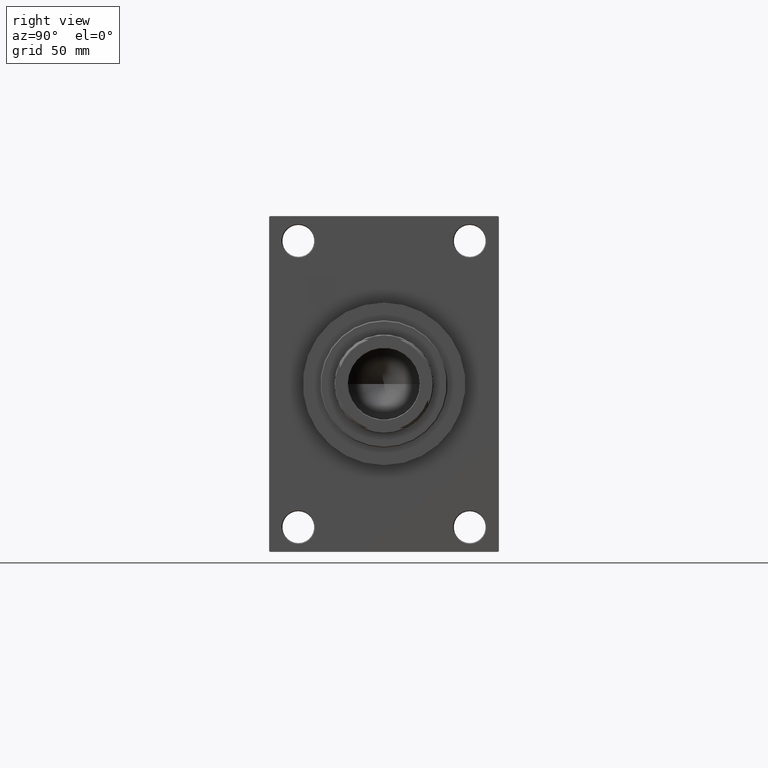
[diagram: clean part render]
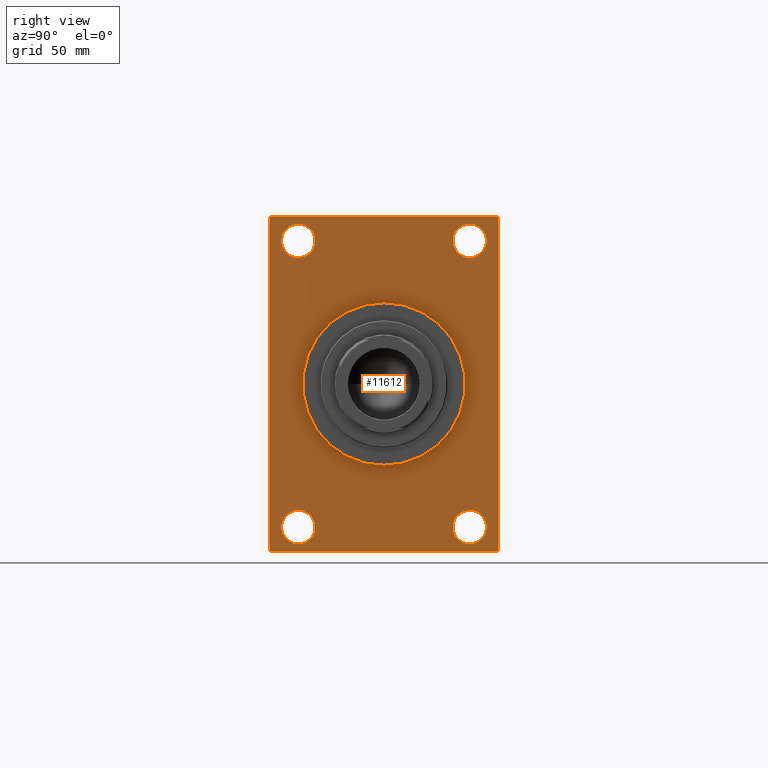
[diagram: same view with one face highlighted and labeled with its STEP entity id]
A machine part, right view. The second image highlights one B-rep face of the part: STEP entity #11612.
In plain terms, the highlighted planar face has unit normal (-1, 0, 0).
Its self-contained STEP definition (entity closure, byte-faithful):
#225 = CARTESIAN_POINT ( 'NONE',  ( 266.9999999999999432, -65.00000000000001421, -94.50000000000002842 ) ) ;
#427 = ORIENTED_EDGE ( 'NONE', *, *, #24844, .T. ) ;
#537 = AXIS2_PLACEMENT_3D ( 'NONE', #6191, #31538, #32498 ) ;
#786 = LINE ( 'NONE', #29996, #16377 ) ;
#1343 = AXIS2_PLACEMENT_3D ( 'NONE', #6600, #28567, #43300 ) ;
#2032 = CARTESIAN_POINT ( 'NONE',  ( 266.9999999999999432, 0.000000000000000000, 46.00000000000000000 ) ) ;
#2277 = VERTEX_POINT ( 'NONE', #38206 ) ;
#2610 = CARTESIAN_POINT ( 'NONE',  ( 266.9999999999999432, -64.50000000000001421, -95.00000000000002842 ) ) ;
#2734 = EDGE_LOOP ( 'NONE', ( #45344, #11182 ) ) ;
#2799 = VERTEX_POINT ( 'NONE', #31005 ) ;
#2954 = DIRECTION ( 'NONE',  ( 0.000000000000000000, 0.000000000000000000, 1.000000000000000000 ) ) ;
#3315 = AXIS2_PLACEMENT_3D ( 'NONE', #8115, #14633, #40974 ) ;
#3794 = DIRECTION ( 'NONE',  ( -1.000000000000000000, 0.000000000000000000, -0.000000000000000000 ) ) ;
#3994 = EDGE_CURVE ( 'NONE', #6979, #2799, #9681, .T. ) ;
#4181 = CARTESIAN_POINT ( 'NONE',  ( 266.9999999999999432, 64.99999999999998579, -94.49999999999997158 ) ) ;
#4312 = CARTESIAN_POINT ( 'NONE',  ( 266.9999999999999432, -65.00000000000001421, 94.49999999999997158 ) ) ;
#5245 = EDGE_CURVE ( 'NONE', #44544, #37164, #27472, .T. ) ;
#5645 = AXIS2_PLACEMENT_3D ( 'NONE', #36153, #5732, #5968 ) ;
#5732 = DIRECTION ( 'NONE',  ( -1.000000000000000000, 0.000000000000000000, -0.000000000000000000 ) ) ;
#5787 = DIRECTION ( 'NONE',  ( -1.000000000000000000, 0.000000000000000000, -0.000000000000000000 ) ) ;
#5968 = DIRECTION ( 'NONE',  ( 0.000000000000000000, 0.000000000000000000, 1.000000000000000000 ) ) ;
#6191 = CARTESIAN_POINT ( 'NONE',  ( 266.9999999999999432, 0.000000000000000000, 0.000000000000000000 ) ) ;
#6599 = EDGE_CURVE ( 'NONE', #38697, #29455, #45245, .T. ) ;
#6600 = CARTESIAN_POINT ( 'NONE',  ( 266.9999999999999432, 48.50000000000000711, -81.00000000000001421 ) ) ;
#6979 = VERTEX_POINT ( 'NONE', #21789 ) ;
#8115 = CARTESIAN_POINT ( 'NONE',  ( 266.9999999999999432, -48.49999999999999289, -81.00000000000001421 ) ) ;
#8831 = EDGE_CURVE ( 'NONE', #33587, #11893, #11416, .T. ) ;
#9159 = DIRECTION ( 'NONE',  ( 0.000000000000000000, 0.000000000000000000, 1.000000000000000000 ) ) ;
#9321 = ORIENTED_EDGE ( 'NONE', *, *, #6599, .F. ) ;
#9485 = CIRCLE ( 'NONE', #5645, 9.499999999999953815 ) ;
#9557 = DIRECTION ( 'NONE',  ( 0.000000000000000000, 0.000000000000000000, -1.000000000000000000 ) ) ;
#9681 = CIRCLE ( 'NONE', #34393, 9.499999999999953815 ) ;
#10076 = LINE ( 'NONE', #2610, #13404 ) ;
#10137 = DIRECTION ( 'NONE',  ( -0.000000000000000000, 0.000000000000000000, 1.000000000000000000 ) ) ;
#10274 = DIRECTION ( 'NONE',  ( 1.000000000000000000, 0.000000000000000000, 0.000000000000000000 ) ) ;
#10314 = CARTESIAN_POINT ( 'NONE',  ( 266.9999999999999432, 64.50000000000002842, 94.99999999999997158 ) ) ;
#11182 = ORIENTED_EDGE ( 'NONE', *, *, #42631, .T. ) ;
#11416 = CIRCLE ( 'NONE', #23744, 9.499999999999953815 ) ;
#11557 = ORIENTED_EDGE ( 'NONE', *, *, #43225, .T. ) ;
#11612 = ADVANCED_FACE ( 'NONE', ( #24375, #13505, #43232, #28251, #17857, #42991 ), #31890, .F. ) ;
#11893 = VERTEX_POINT ( 'NONE', #13309 ) ;
#13047 = VERTEX_POINT ( 'NONE', #33091 ) ;
#13148 = CARTESIAN_POINT ( 'NONE',  ( 266.9999999999999432, -64.50000000000002842, 94.99999999999997158 ) ) ;
#13308 = CARTESIAN_POINT ( 'NONE',  ( 266.9999999999999432, 48.50000000000000711, -90.49999999999997158 ) ) ;
#13309 = CARTESIAN_POINT ( 'NONE',  ( 266.9999999999999432, -48.50000000000000000, 90.49999999999995737 ) ) ;
#13381 = DIRECTION ( 'NONE',  ( 0.000000000000000000, -1.000000000000000000, 0.000000000000000000 ) ) ;
#13404 = VECTOR ( 'NONE', #36411, 1000.000000000000114 ) ;
#13459 = ORIENTED_EDGE ( 'NONE', *, *, #43455, .F. ) ;
#13505 = FACE_BOUND ( 'NONE', #45034, .T. ) ;
#13583 = EDGE_LOOP ( 'NONE', ( #36740, #21002 ) ) ;
#13706 = ORIENTED_EDGE ( 'NONE', *, *, #26004, .T. ) ;
#14386 = DIRECTION ( 'NONE',  ( 0.000000000000000000, 0.000000000000000000, 1.000000000000000000 ) ) ;
#14633 = DIRECTION ( 'NONE',  ( -1.000000000000000000, 0.000000000000000000, -0.000000000000000000 ) ) ;
#15135 = CARTESIAN_POINT ( 'NONE',  ( 266.9999999999999432, -48.50000000000000000, 81.00000000000000000 ) ) ;
#15935 = CARTESIAN_POINT ( 'NONE',  ( 266.9999999999999432, 5.633375276077824704E-15, -46.00000000000000000 ) ) ;
#16190 = LINE ( 'NONE', #45434, #33904 ) ;
#16377 = VECTOR ( 'NONE', #22979, 1000.000000000000000 ) ;
#16622 = VERTEX_POINT ( 'NONE', #13308 ) ;
#16749 = ORIENTED_EDGE ( 'NONE', *, *, #30720, .T. ) ;
#16824 = LINE ( 'NONE', #42675, #46869 ) ;
#17839 = AXIS2_PLACEMENT_3D ( 'NONE', #21271, #36025, #2954 ) ;
#17857 = FACE_BOUND ( 'NONE', #32775, .T. ) ;
#18102 = VECTOR ( 'NONE', #24666, 1000.000000000000000 ) ;
#18429 = VERTEX_POINT ( 'NONE', #25698 ) ;
#18689 = VECTOR ( 'NONE', #18872, 999.9999999999998863 ) ;
#18872 = DIRECTION ( 'NONE',  ( -0.000000000000000000, 0.7071067811865574537, 0.7071067811865376918 ) ) ;
#19800 = DIRECTION ( 'NONE',  ( 0.000000000000000000, -0.7071067811865474617, 0.7071067811865474617 ) ) ;
#20818 = EDGE_CURVE ( 'NONE', #16622, #13047, #27862, .T. ) ;
#20876 = LINE ( 'NONE', #46485, #32686 ) ;
#20991 = DIRECTION ( 'NONE',  ( -1.000000000000000000, 0.000000000000000000, -0.000000000000000000 ) ) ;
#21002 = ORIENTED_EDGE ( 'NONE', *, *, #44690, .T. ) ;
#21271 = CARTESIAN_POINT ( 'NONE',  ( 266.9999999999999432, 48.50000000000000711, -81.00000000000001421 ) ) ;
#21686 = ORIENTED_EDGE ( 'NONE', *, *, #23177, .T. ) ;
#21789 = CARTESIAN_POINT ( 'NONE',  ( 266.9999999999999432, -48.49999999999999289, -90.49999999999997158 ) ) ;
#21823 = CARTESIAN_POINT ( 'NONE',  ( 266.9999999999999432, 64.99999999999997158, 94.50000000000002842 ) ) ;
#22378 = CARTESIAN_POINT ( 'NONE',  ( 266.9999999999999432, 64.99999999999998579, -95.00000000000001421 ) ) ;
#22979 = DIRECTION ( 'NONE',  ( 0.000000000000000000, 0.000000000000000000, -1.000000000000000000 ) ) ;
#23177 = EDGE_CURVE ( 'NONE', #27201, #42527, #786, .T. ) ;
#23732 = EDGE_CURVE ( 'NONE', #2799, #6979, #33409, .T. ) ;
#23744 = AXIS2_PLACEMENT_3D ( 'NONE', #15135, #37389, #30129 ) ;
#23825 = VECTOR ( 'NONE', #37855, 1000.000000000000000 ) ;
#24375 = FACE_BOUND ( 'NONE', #31971, .T. ) ;
#24666 = DIRECTION ( 'NONE',  ( -0.000000000000000000, -0.7071067811865378028, -0.7071067811865573427 ) ) ;
#24844 = EDGE_CURVE ( 'NONE', #33532, #43586, #20876, .T. ) ;
#25698 = CARTESIAN_POINT ( 'NONE',  ( 266.9999999999999432, 64.49999999999992895, -95.00000000000001421 ) ) ;
#26004 = EDGE_CURVE ( 'NONE', #18429, #32193, #40407, .T. ) ;
#26970 = EDGE_LOOP ( 'NONE', ( #21686, #16749, #13459, #13706, #30621, #11557, #427, #27702 ) ) ;
#27201 = VERTEX_POINT ( 'NONE', #4312 ) ;
#27472 = CIRCLE ( 'NONE', #41392, 9.499999999999953815 ) ;
#27702 = ORIENTED_EDGE ( 'NONE', *, *, #32922, .T. ) ;
#27862 = CIRCLE ( 'NONE', #17839, 9.499999999999953815 ) ;
#27977 = CARTESIAN_POINT ( 'NONE',  ( 266.9999999999999432, -48.49999999999999289, -81.00000000000001421 ) ) ;
#28182 = DIRECTION ( 'NONE',  ( -1.000000000000000000, 0.000000000000000000, -0.000000000000000000 ) ) ;
#28191 = EDGE_CURVE ( 'NONE', #11893, #33587, #9485, .T. ) ;
#28251 = FACE_BOUND ( 'NONE', #2734, .T. ) ;
#28567 = DIRECTION ( 'NONE',  ( -1.000000000000000000, 0.000000000000000000, -0.000000000000000000 ) ) ;
#28903 = DIRECTION ( 'NONE',  ( 0.000000000000000000, 0.000000000000000000, 1.000000000000000000 ) ) ;
#29103 = AXIS2_PLACEMENT_3D ( 'NONE', #36476, #20991, #10137 ) ;
#29455 = VERTEX_POINT ( 'NONE', #15935 ) ;
#29610 = CARTESIAN_POINT ( 'NONE',  ( 266.9999999999999432, 48.50000000000000711, 81.00000000000000000 ) ) ;
#29840 = CIRCLE ( 'NONE', #1343, 9.499999999999953815 ) ;
#29872 = CIRCLE ( 'NONE', #39152, 46.00000000000000000 ) ;
#29996 = CARTESIAN_POINT ( 'NONE',  ( 266.9999999999999432, -65.00000000000001421, 94.99999999999997158 ) ) ;
#30112 = LINE ( 'NONE', #22378, #23825 ) ;
#30129 = DIRECTION ( 'NONE',  ( 0.000000000000000000, 0.000000000000000000, 1.000000000000000000 ) ) ;
#30621 = ORIENTED_EDGE ( 'NONE', *, *, #45754, .F. ) ;
#30672 = AXIS2_PLACEMENT_3D ( 'NONE', #43882, #28182, #28903 ) ;
#30720 = EDGE_CURVE ( 'NONE', #42527, #2277, #10076, .T. ) ;
#30941 = ORIENTED_EDGE ( 'NONE', *, *, #38242, .F. ) ;
#31005 = CARTESIAN_POINT ( 'NONE',  ( 266.9999999999999432, -48.49999999999999289, -71.50000000000005684 ) ) ;
#31462 = LINE ( 'NONE', #45935, #18102 ) ;
#31538 = DIRECTION ( 'NONE',  ( 1.000000000000000000, 0.000000000000000000, 0.000000000000000000 ) ) ;
#31890 = PLANE ( 'NONE',  #29103 ) ;
#31971 = EDGE_LOOP ( 'NONE', ( #36190, #39612 ) ) ;
#32193 = VERTEX_POINT ( 'NONE', #41329 ) ;
#32498 = DIRECTION ( 'NONE',  ( 0.000000000000000000, 0.000000000000000000, -1.000000000000000000 ) ) ;
#32532 = DIRECTION ( 'NONE',  ( 0.000000000000000000, 7.304098846218135653E-17, -1.000000000000000000 ) ) ;
#32629 = ORIENTED_EDGE ( 'NONE', *, *, #23732, .T. ) ;
#32686 = VECTOR ( 'NONE', #13381, 1000.000000000000000 ) ;
#32775 = EDGE_LOOP ( 'NONE', ( #9321, #30941 ) ) ;
#32922 = EDGE_CURVE ( 'NONE', #43586, #27201, #31462, .T. ) ;
#33091 = CARTESIAN_POINT ( 'NONE',  ( 266.9999999999999432, 48.50000000000000711, -71.50000000000005684 ) ) ;
#33409 = CIRCLE ( 'NONE', #3315, 9.499999999999953815 ) ;
#33532 = VERTEX_POINT ( 'NONE', #10314 ) ;
#33587 = VERTEX_POINT ( 'NONE', #39552 ) ;
#33904 = VECTOR ( 'NONE', #19800, 1000.000000000000114 ) ;
#34393 = AXIS2_PLACEMENT_3D ( 'NONE', #27977, #5787, #9159 ) ;
#35349 = CARTESIAN_POINT ( 'NONE',  ( 266.9999999999999432, 48.50000000000000711, 71.50000000000004263 ) ) ;
#36025 = DIRECTION ( 'NONE',  ( -1.000000000000000000, 0.000000000000000000, -0.000000000000000000 ) ) ;
#36153 = CARTESIAN_POINT ( 'NONE',  ( 266.9999999999999432, -48.50000000000000000, 81.00000000000000000 ) ) ;
#36190 = ORIENTED_EDGE ( 'NONE', *, *, #8831, .T. ) ;
#36411 = DIRECTION ( 'NONE',  ( 0.000000000000000000, 0.7071067811865474617, -0.7071067811865474617 ) ) ;
#36476 = CARTESIAN_POINT ( 'NONE',  ( 266.9999999999999432, 0.000000000000000000, 0.000000000000000000 ) ) ;
#36740 = ORIENTED_EDGE ( 'NONE', *, *, #20818, .T. ) ;
#37164 = VERTEX_POINT ( 'NONE', #42885 ) ;
#37389 = DIRECTION ( 'NONE',  ( -1.000000000000000000, 0.000000000000000000, -0.000000000000000000 ) ) ;
#37855 = DIRECTION ( 'NONE',  ( 0.000000000000000000, -1.000000000000000000, -1.067522139062650425E-16 ) ) ;
#38206 = CARTESIAN_POINT ( 'NONE',  ( 266.9999999999999432, -64.50000000000001421, -95.00000000000002842 ) ) ;
#38242 = EDGE_CURVE ( 'NONE', #29455, #38697, #29872, .T. ) ;
#38697 = VERTEX_POINT ( 'NONE', #2032 ) ;
#39152 = AXIS2_PLACEMENT_3D ( 'NONE', #43369, #10274, #9557 ) ;
#39552 = CARTESIAN_POINT ( 'NONE',  ( 266.9999999999999432, -48.50000000000000000, 71.50000000000004263 ) ) ;
#39612 = ORIENTED_EDGE ( 'NONE', *, *, #28191, .T. ) ;
#39870 = ORIENTED_EDGE ( 'NONE', *, *, #3994, .T. ) ;
#40407 = LINE ( 'NONE', #4181, #18689 ) ;
#40974 = DIRECTION ( 'NONE',  ( 0.000000000000000000, 0.000000000000000000, 1.000000000000000000 ) ) ;
#41329 = CARTESIAN_POINT ( 'NONE',  ( 266.9999999999999432, 64.99999999999998579, -94.49999999999997158 ) ) ;
#41392 = AXIS2_PLACEMENT_3D ( 'NONE', #29610, #3794, #14386 ) ;
#41412 = VERTEX_POINT ( 'NONE', #21823 ) ;
#42527 = VERTEX_POINT ( 'NONE', #225 ) ;
#42631 = EDGE_CURVE ( 'NONE', #37164, #44544, #45323, .T. ) ;
#42675 = CARTESIAN_POINT ( 'NONE',  ( 266.9999999999999432, 64.99999999999997158, 94.99999999999997158 ) ) ;
#42885 = CARTESIAN_POINT ( 'NONE',  ( 266.9999999999999432, 48.50000000000000711, 90.49999999999995737 ) ) ;
#42991 = FACE_OUTER_BOUND ( 'NONE', #26970, .T. ) ;
#43225 = EDGE_CURVE ( 'NONE', #41412, #33532, #16190, .T. ) ;
#43232 = FACE_BOUND ( 'NONE', #13583, .T. ) ;
#43300 = DIRECTION ( 'NONE',  ( 0.000000000000000000, 0.000000000000000000, 1.000000000000000000 ) ) ;
#43369 = CARTESIAN_POINT ( 'NONE',  ( 266.9999999999999432, 0.000000000000000000, 0.000000000000000000 ) ) ;
#43455 = EDGE_CURVE ( 'NONE', #18429, #2277, #30112, .T. ) ;
#43586 = VERTEX_POINT ( 'NONE', #13148 ) ;
#43882 = CARTESIAN_POINT ( 'NONE',  ( 266.9999999999999432, 48.50000000000000711, 81.00000000000000000 ) ) ;
#44544 = VERTEX_POINT ( 'NONE', #35349 ) ;
#44690 = EDGE_CURVE ( 'NONE', #13047, #16622, #29840, .T. ) ;
#45034 = EDGE_LOOP ( 'NONE', ( #39870, #32629 ) ) ;
#45245 = CIRCLE ( 'NONE', #537, 46.00000000000000000 ) ;
#45323 = CIRCLE ( 'NONE', #30672, 9.499999999999953815 ) ;
#45344 = ORIENTED_EDGE ( 'NONE', *, *, #5245, .T. ) ;
#45434 = CARTESIAN_POINT ( 'NONE',  ( 266.9999999999999432, 64.50000000000002842, 94.99999999999997158 ) ) ;
#45754 = EDGE_CURVE ( 'NONE', #41412, #32193, #16824, .T. ) ;
#45935 = CARTESIAN_POINT ( 'NONE',  ( 266.9999999999999432, -65.00000000000001421, 94.49999999999997158 ) ) ;
#46485 = CARTESIAN_POINT ( 'NONE',  ( 266.9999999999999432, 64.99999999999997158, 94.99999999999997158 ) ) ;
#46869 = VECTOR ( 'NONE', #32532, 1000.000000000000000 ) ;